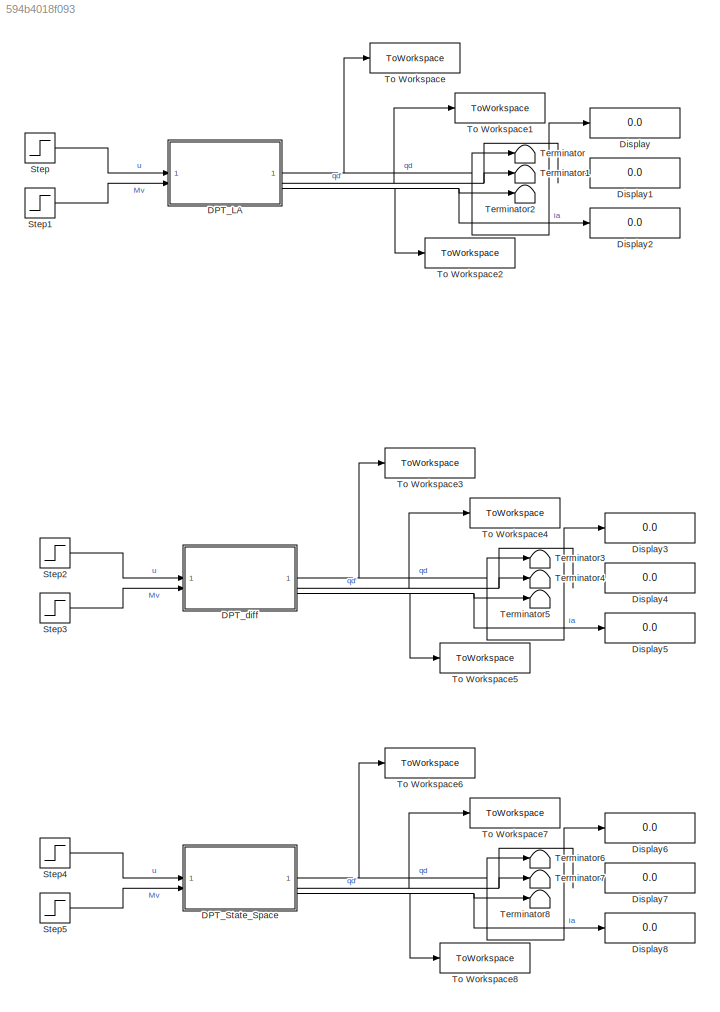
MODEL slx_594b4018f093
KIND model
CONFIG AbsTol = auto
CONFIG EnableMultiTasking = off
CONFIG FixedStep = auto
CONFIG MaxStep = auto
CONFIG MinStep = auto
CONFIG RelTol = 1e-3
CONFIG SampleTimeConstraint = Unconstrained
CONFIG SolverName = VariableStepAuto
CONFIG StartTime = 0.0
CONFIG StopTime = 1
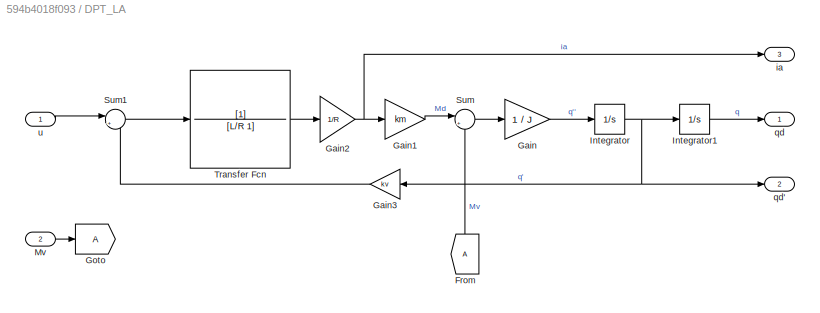
BLOCK [SubSystem] DPT_LA
BLOCK [From] DPT_LA/From
  NameLocation = right
BLOCK [Gain] DPT_LA/Gain
  Gain = 1 / J
BLOCK [Gain] DPT_LA/Gain1
  Gain = km
BLOCK [Gain] DPT_LA/Gain2
  Gain = 1/R
BLOCK [Gain] DPT_LA/Gain3
  Gain = kv
  NameLocation = top
BLOCK [Goto] DPT_LA/Goto
BLOCK [Integrator] DPT_LA/Integrator
BLOCK [Integrator] DPT_LA/Integrator1
BLOCK [Inport] DPT_LA/Mv
  Port = 2
BLOCK [Sum] DPT_LA/Sum
  Inputs = |+-
BLOCK [Sum] DPT_LA/Sum1
  Inputs = |+-
BLOCK [TransferFcn] DPT_LA/Transfer Fcn
  Denominator = [L/R 1]
BLOCK [Outport] DPT_LA/ia
  Port = 3
BLOCK [Outport] DPT_LA/qd
BLOCK [Outport] DPT_LA/qd'
  Port = 2
BLOCK [Inport] DPT_LA/u
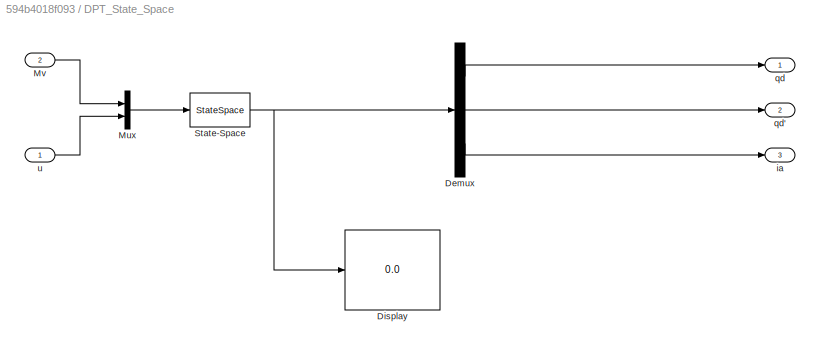
BLOCK [SubSystem] DPT_State_Space
BLOCK [Demux] DPT_State_Space/Demux
  Outputs = 3
BLOCK [Display] DPT_State_Space/Display
  Decimation = 3
BLOCK [Mux] DPT_State_Space/Mux
  DisplayOption = bar
  Inputs = 2
BLOCK [Inport] DPT_State_Space/Mv
  Port = 2
BLOCK [StateSpace] DPT_State_Space/State-Space
  A = A
  B = B
  C = C
  D = D
  InitialCondition = 0
BLOCK [Outport] DPT_State_Space/ia
  Port = 3
BLOCK [Outport] DPT_State_Space/qd
BLOCK [Outport] DPT_State_Space/qd'
  Port = 2
BLOCK [Inport] DPT_State_Space/u
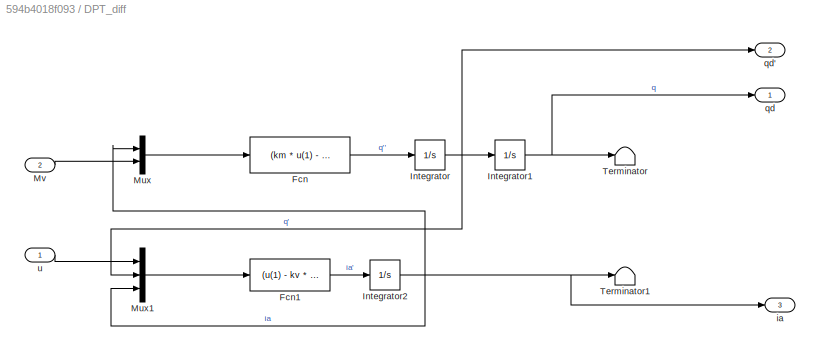
BLOCK [SubSystem] DPT_diff
BLOCK [Fcn] DPT_diff/Fcn
  Expr = (km * u(1) - u(2)) / J
BLOCK [Fcn] DPT_diff/Fcn1
  Expr = (u(1) - kv * u(2) - u(3) * R) / L
BLOCK [Integrator] DPT_diff/Integrator
BLOCK [Integrator] DPT_diff/Integrator1
BLOCK [Integrator] DPT_diff/Integrator2
BLOCK [Mux] DPT_diff/Mux
  DisplayOption = bar
  Inputs = 2
BLOCK [Mux] DPT_diff/Mux1
  DisplayOption = bar
  Inputs = 3
BLOCK [Inport] DPT_diff/Mv
  Port = 2
BLOCK [Terminator] DPT_diff/Terminator
BLOCK [Terminator] DPT_diff/Terminator1
BLOCK [Outport] DPT_diff/ia
  Port = 3
BLOCK [Outport] DPT_diff/qd
BLOCK [Outport] DPT_diff/qd'
  Port = 2
BLOCK [Inport] DPT_diff/u
BLOCK [Display] Display
  Decimation = 1
BLOCK [Display] Display1
  Decimation = 1
BLOCK [Display] Display2
  Decimation = 1
BLOCK [Display] Display3
  Decimation = 1
BLOCK [Display] Display4
  Decimation = 1
BLOCK [Display] Display5
  Decimation = 1
BLOCK [Display] Display6
  Decimation = 1
BLOCK [Display] Display7
  Decimation = 1
BLOCK [Display] Display8
  Decimation = 1
BLOCK [Step] Step
  SampleTime = 0
  Time = 0
BLOCK [Step] Step1
  SampleTime = 0
  Time = 0
BLOCK [Step] Step2
  SampleTime = 0
  Time = 0
BLOCK [Step] Step3
  SampleTime = 0
  Time = 0
BLOCK [Step] Step4
  SampleTime = 0
  Time = 0
BLOCK [Step] Step5
  SampleTime = 0
  Time = 0
BLOCK [Terminator] Terminator
BLOCK [Terminator] Terminator1
BLOCK [Terminator] Terminator2
BLOCK [Terminator] Terminator3
BLOCK [Terminator] Terminator4
BLOCK [Terminator] Terminator5
BLOCK [Terminator] Terminator6
BLOCK [Terminator] Terminator7
BLOCK [Terminator] Terminator8
BLOCK [ToWorkspace] To Workspace
  FixptAsFi = on
  MaxDataPoints = inf
  SampleTime = -1
  SaveFormat = Timeseries
  VariableName = simoutqd
BLOCK [ToWorkspace] To Workspace1
  FixptAsFi = on
  MaxDataPoints = inf
  SampleTime = -1
  SaveFormat = Timeseries
  VariableName = simoutqddt
BLOCK [ToWorkspace] To Workspace2
  FixptAsFi = on
  MaxDataPoints = inf
  SampleTime = -1
  SaveFormat = Timeseries
  VariableName = simoutia
BLOCK [ToWorkspace] To Workspace3
  FixptAsFi = on
  MaxDataPoints = inf
  SampleTime = -1
  SaveFormat = Timeseries
  VariableName = simoutqd1
BLOCK [ToWorkspace] To Workspace4
  FixptAsFi = on
  MaxDataPoints = inf
  SampleTime = -1
  SaveFormat = Timeseries
  VariableName = simoutqddt1
BLOCK [ToWorkspace] To Workspace5
  FixptAsFi = on
  MaxDataPoints = inf
  SampleTime = -1
  SaveFormat = Timeseries
  VariableName = simoutia1
BLOCK [ToWorkspace] To Workspace6
  FixptAsFi = on
  MaxDataPoints = inf
  SampleTime = -1
  SaveFormat = Timeseries
  VariableName = simoutqd2
BLOCK [ToWorkspace] To Workspace7
  FixptAsFi = on
  MaxDataPoints = inf
  SampleTime = -1
  SaveFormat = Timeseries
  VariableName = simoutqddt2
BLOCK [ToWorkspace] To Workspace8
  FixptAsFi = on
  MaxDataPoints = inf
  SampleTime = -1
  SaveFormat = Timeseries
  VariableName = simoutia2
LINE DPT_LA/From:1 -> DPT_LA/Sum:2
LINE DPT_LA/Gain1:1 -> DPT_LA/Sum:1
NET DPT_LA/Gain2:1 -> DPT_LA/Gain1:1, DPT_LA/ia:1
LINE DPT_LA/Gain3:1 -> DPT_LA/Sum1:2
LINE DPT_LA/Gain:1 -> DPT_LA/Integrator:1
LINE DPT_LA/Integrator1:1 -> DPT_LA/qd:1
NET DPT_LA/Integrator:1 -> DPT_LA/Gain3:1, DPT_LA/Integrator1:1, DPT_LA/qd':1
LINE DPT_LA/Mv:1 -> DPT_LA/Goto:1
LINE DPT_LA/Sum1:1 -> DPT_LA/Transfer Fcn:1
LINE DPT_LA/Sum:1 -> DPT_LA/Gain:1
LINE DPT_LA/Transfer Fcn:1 -> DPT_LA/Gain2:1
LINE DPT_LA/u:1 -> DPT_LA/Sum1:1
NET DPT_LA:1 -> Display:1, Terminator:1, To Workspace:1
NET DPT_LA:2 -> Display1:1, Terminator1:1, To Workspace1:1
NET DPT_LA:3 -> Display2:1, Terminator2:1, To Workspace2:1
LINE DPT_State_Space/Demux:1 -> DPT_State_Space/qd:1
LINE DPT_State_Space/Demux:2 -> DPT_State_Space/qd':1
LINE DPT_State_Space/Demux:3 -> DPT_State_Space/ia:1
LINE DPT_State_Space/Mux:1 -> DPT_State_Space/State-Space:1
LINE DPT_State_Space/Mv:1 -> DPT_State_Space/Mux:1
NET DPT_State_Space/State-Space:1 -> DPT_State_Space/Demux:1, DPT_State_Space/Display:1
LINE DPT_State_Space/u:1 -> DPT_State_Space/Mux:2
NET DPT_State_Space:1 -> Display6:1, Terminator6:1, To Workspace6:1
NET DPT_State_Space:2 -> Display7:1, Terminator7:1, To Workspace7:1
NET DPT_State_Space:3 -> Display8:1, Terminator8:1, To Workspace8:1
LINE DPT_diff/Fcn1:1 -> DPT_diff/Integrator2:1
LINE DPT_diff/Fcn:1 -> DPT_diff/Integrator:1
NET DPT_diff/Integrator1:1 -> DPT_diff/Terminator:1, DPT_diff/qd:1
NET DPT_diff/Integrator2:1 -> DPT_diff/Mux1:3, DPT_diff/Mux:1, DPT_diff/Terminator1:1, DPT_diff/ia:1
NET DPT_diff/Integrator:1 -> DPT_diff/Integrator1:1, DPT_diff/Mux1:2, DPT_diff/qd':1
LINE DPT_diff/Mux1:1 -> DPT_diff/Fcn1:1
LINE DPT_diff/Mux:1 -> DPT_diff/Fcn:1
LINE DPT_diff/Mv:1 -> DPT_diff/Mux:2
LINE DPT_diff/u:1 -> DPT_diff/Mux1:1
NET DPT_diff:1 -> Display3:1, Terminator3:1, To Workspace3:1
NET DPT_diff:2 -> Display4:1, Terminator4:1, To Workspace4:1
NET DPT_diff:3 -> Display5:1, Terminator5:1, To Workspace5:1
LINE Step1:1 -> DPT_LA:2
LINE Step2:1 -> DPT_diff:1
LINE Step3:1 -> DPT_diff:2
LINE Step4:1 -> DPT_State_Space:1
LINE Step5:1 -> DPT_State_Space:2
LINE Step:1 -> DPT_LA:1
note: NET lines group one-source signal fan-out (src -> all destinations, sorted); 1:1 wires keep LINE
